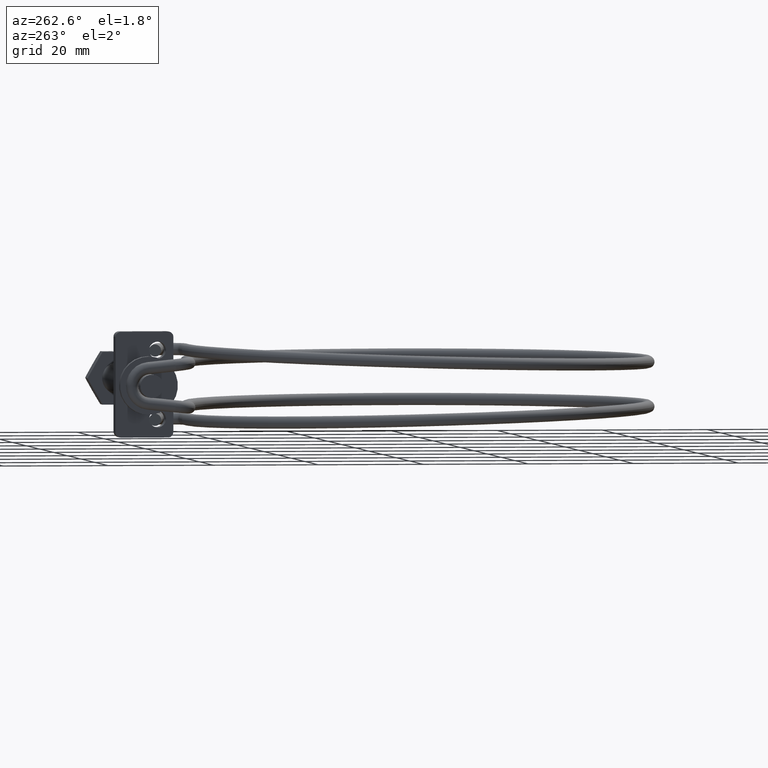
[diagram: clean part render]
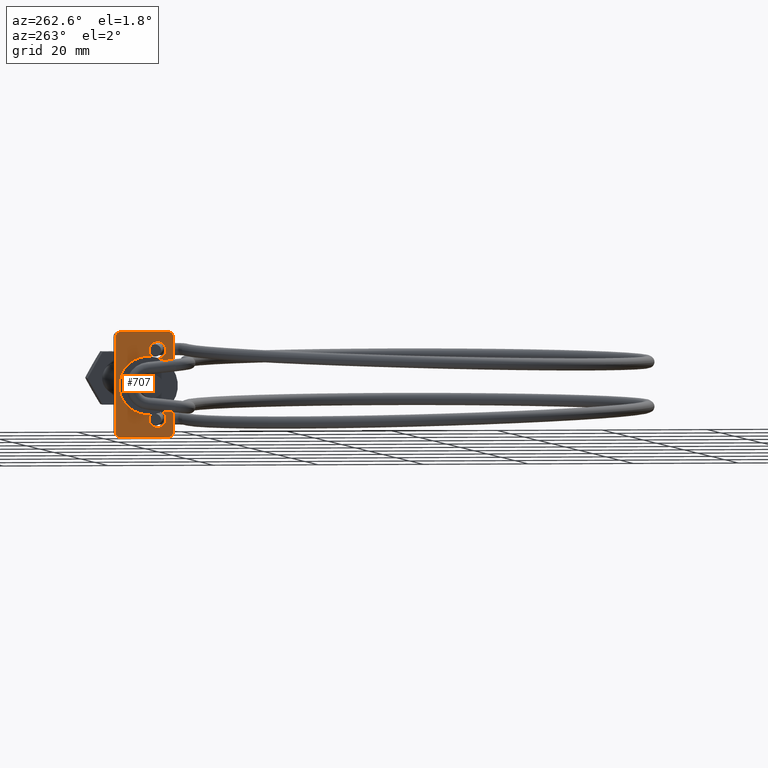
[diagram: same view with one face highlighted and labeled with its STEP entity id]
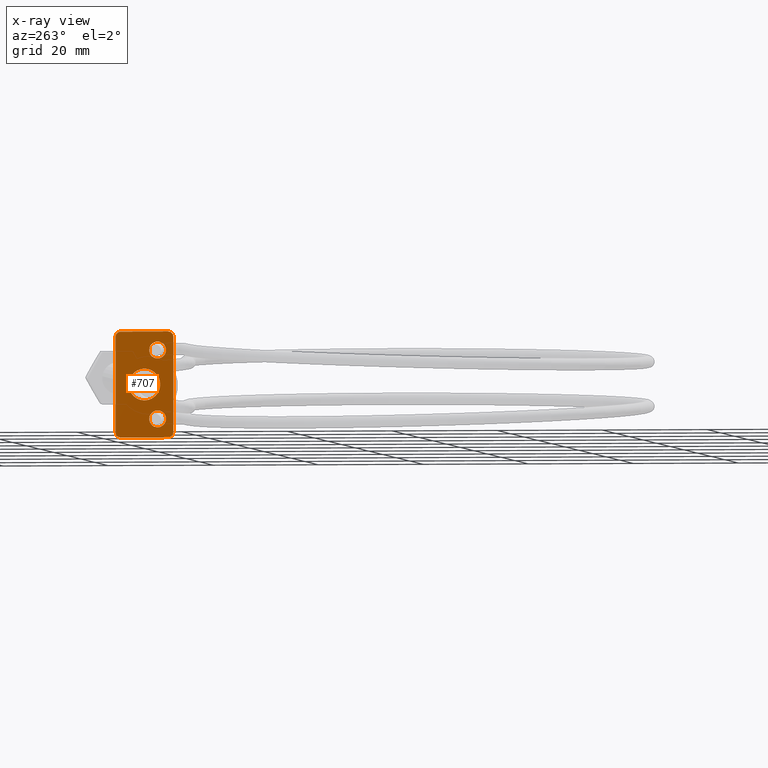
[diagram: x-ray of the same camera — body ghosted, the highlighted face saturated]
A machine part, auxiliary view. The second image highlights one B-rep face of the part: STEP entity #707.
The next image is the same camera in x-ray: the body ghosted, the highlighted face saturated — about 0% of this face is hidden behind the body in this view.
In plain terms, the highlighted planar face has unit normal (1, 0, 0).
Its self-contained STEP definition (entity closure, byte-faithful):
#21 = AXIS2_PLACEMENT_3D ( 'NONE', #1214, #2935, #1464 ) ;
#43 = DIRECTION ( 'NONE',  ( -1.000000000000000000, -0.0000000000000000000, -0.0000000000000000000 ) ) ;
#52 = VERTEX_POINT ( 'NONE', #1601 ) ;
#126 = AXIS2_PLACEMENT_3D ( 'NONE', #1746, #286, #1980 ) ;
#132 = EDGE_CURVE ( 'NONE', #2980, #2491, #357, .T. ) ;
#183 = FACE_BOUND ( 'NONE', #3063, .T. ) ;
#198 = VECTOR ( 'NONE', #1728, 1000.000000000000000 ) ;
#232 = ORIENTED_EDGE ( 'NONE', *, *, #1847, .T. ) ;
#248 = AXIS2_PLACEMENT_3D ( 'NONE', #696, #2413, #937 ) ;
#273 = CARTESIAN_POINT ( 'NONE',  ( -1.500000000000000000, 0.0000000000000000000, 0.0000000000000000000 ) ) ;
#278 = AXIS2_PLACEMENT_3D ( 'NONE', #314, #2007, #557 ) ;
#283 = EDGE_CURVE ( 'NONE', #2981, #2238, #1843, .T. ) ;
#286 = DIRECTION ( 'NONE',  ( -1.000000000000000000, -0.0000000000000000000, -0.0000000000000000000 ) ) ;
#307 = VERTEX_POINT ( 'NONE', #2160 ) ;
#314 = CARTESIAN_POINT ( 'NONE',  ( -1.500000000000000000, -2.499999999999999100, 6.500000000000000000 ) ) ;
#340 = DIRECTION ( 'NONE',  ( 1.000000000000000000, 0.0000000000000000000, 0.0000000000000000000 ) ) ;
#357 = LINE ( 'NONE', #3083, #2879 ) ;
#361 = VERTEX_POINT ( 'NONE', #2287 ) ;
#372 = ORIENTED_EDGE ( 'NONE', *, *, #1892, .T. ) ;
#473 = VERTEX_POINT ( 'NONE', #864 ) ;
#512 = DIRECTION ( 'NONE',  ( 0.0000000000000000000, 0.0000000000000000000, -1.000000000000000000 ) ) ;
#552 = CARTESIAN_POINT ( 'NONE',  ( -1.500000000000000000, -5.500000000000000000, 9.000000000000001800 ) ) ;
#557 = DIRECTION ( 'NONE',  ( 0.0000000000000000000, 0.0000000000000000000, -1.000000000000000000 ) ) ;
#562 = CARTESIAN_POINT ( 'NONE',  ( -1.500000000000000000, -5.500000000000000000, -9.000000000000003600 ) ) ;
#566 = EDGE_CURVE ( 'NONE', #1879, #52, #1795, .T. ) ;
#613 = AXIS2_PLACEMENT_3D ( 'NONE', #1500, #43, #1742 ) ;
#667 = AXIS2_PLACEMENT_3D ( 'NONE', #1799, #340, #2035 ) ;
#671 = DIRECTION ( 'NONE',  ( -1.000000000000000000, -0.0000000000000000000, -0.0000000000000000000 ) ) ;
#696 = CARTESIAN_POINT ( 'NONE',  ( -1.500000000000000000, -2.499999999999999100, -6.500000000000000000 ) ) ;
#707 = ADVANCED_FACE ( 'NONE', ( #183, #1466, #2690, #801 ), #1875, .F. ) ;
#712 = AXIS2_PLACEMENT_3D ( 'NONE', #735, #2459, #979 ) ;
#721 = ORIENTED_EDGE ( 'NONE', *, *, #2626, .F. ) ;
#735 = CARTESIAN_POINT ( 'NONE',  ( -1.500000000000000000, 4.500000000000000000, -9.000000000000003600 ) ) ;
#736 = CARTESIAN_POINT ( 'NONE',  ( -1.500000000000000000, 5.500000000000000000, 9.000000000000001800 ) ) ;
#760 = CARTESIAN_POINT ( 'NONE',  ( -1.500000000000000000, -2.499999999999999100, 6.500000000000000000 ) ) ;
#763 = CIRCLE ( 'NONE', #613, 1.000000000000000900 ) ;
#773 = CIRCLE ( 'NONE', #712, 0.9999999999999991100 ) ;
#801 = FACE_OUTER_BOUND ( 'NONE', #2272, .T. ) ;
#816 = CARTESIAN_POINT ( 'NONE',  ( -1.500000000000000000, 4.500000000000000000, -10.00000000000000000 ) ) ;
#825 = LINE ( 'NONE', #3154, #198 ) ;
#851 = CIRCLE ( 'NONE', #278, 1.599999999999999900 ) ;
#853 = DIRECTION ( 'NONE',  ( 0.0000000000000000000, -1.000000000000000000, 0.0000000000000000000 ) ) ;
#858 = VERTEX_POINT ( 'NONE', #1615 ) ;
#864 = CARTESIAN_POINT ( 'NONE',  ( -1.500000000000000000, -4.499999999999999100, 10.00000000000000000 ) ) ;
#937 = DIRECTION ( 'NONE',  ( 0.0000000000000000000, 0.0000000000000000000, -1.000000000000000000 ) ) ;
#979 = DIRECTION ( 'NONE',  ( 0.0000000000000000000, 0.0000000000000000000, -1.000000000000000000 ) ) ;
#981 = ORIENTED_EDGE ( 'NONE', *, *, #1135, .T. ) ;
#1003 = DIRECTION ( 'NONE',  ( 0.0000000000000000000, 0.0000000000000000000, -1.000000000000000000 ) ) ;
#1105 = CARTESIAN_POINT ( 'NONE',  ( -1.500000000000000000, -2.499999999999999100, -8.099999999999999600 ) ) ;
#1123 = CIRCLE ( 'NONE', #2926, 1.000000000000000900 ) ;
#1135 = EDGE_CURVE ( 'NONE', #2980, #1974, #1123, .T. ) ;
#1152 = ORIENTED_EDGE ( 'NONE', *, *, #1784, .T. ) ;
#1204 = CIRCLE ( 'NONE', #1817, 3.000000000000000400 ) ;
#1213 = LINE ( 'NONE', #1865, #2441 ) ;
#1214 = CARTESIAN_POINT ( 'NONE',  ( -1.500000000000000000, 0.0000000000000000000, 0.0000000000000000000 ) ) ;
#1244 = ORIENTED_EDGE ( 'NONE', *, *, #3165, .T. ) ;
#1282 = CIRCLE ( 'NONE', #126, 1.000000000000000900 ) ;
#1355 = ORIENTED_EDGE ( 'NONE', *, *, #283, .T. ) ;
#1374 = ORIENTED_EDGE ( 'NONE', *, *, #566, .T. ) ;
#1401 = DIRECTION ( 'NONE',  ( 1.000000000000000000, 0.0000000000000000000, 0.0000000000000000000 ) ) ;
#1464 = DIRECTION ( 'NONE',  ( 0.0000000000000000000, 0.0000000000000000000, -1.000000000000000000 ) ) ;
#1466 = FACE_BOUND ( 'NONE', #2570, .T. ) ;
#1500 = CARTESIAN_POINT ( 'NONE',  ( -1.500000000000000000, 4.500000000000000000, 9.000000000000001800 ) ) ;
#1510 = EDGE_CURVE ( 'NONE', #52, #1879, #1204, .T. ) ;
#1601 = CARTESIAN_POINT ( 'NONE',  ( -1.500000000000000000, 0.0000000000000000000, -3.000000000000000400 ) ) ;
#1605 = ORIENTED_EDGE ( 'NONE', *, *, #3100, .T. ) ;
#1612 = DIRECTION ( 'NONE',  ( -0.0000000000000000000, 1.000000000000000000, -0.0000000000000000000 ) ) ;
#1615 = CARTESIAN_POINT ( 'NONE',  ( -1.500000000000000000, 4.500000000000000000, 10.00000000000000000 ) ) ;
#1724 = VERTEX_POINT ( 'NONE', #736 ) ;
#1728 = DIRECTION ( 'NONE',  ( 0.0000000000000000000, 0.0000000000000000000, -1.000000000000000000 ) ) ;
#1742 = DIRECTION ( 'NONE',  ( 0.0000000000000000000, 0.0000000000000000000, -1.000000000000000000 ) ) ;
#1746 = CARTESIAN_POINT ( 'NONE',  ( -1.500000000000000000, -4.500000000000000000, 9.000000000000001800 ) ) ;
#1784 = EDGE_CURVE ( 'NONE', #307, #361, #2893, .T. ) ;
#1795 = CIRCLE ( 'NONE', #21, 3.000000000000000400 ) ;
#1799 = CARTESIAN_POINT ( 'NONE',  ( -1.500000000000000000, -2.499999999999999100, -6.500000000000000000 ) ) ;
#1817 = AXIS2_PLACEMENT_3D ( 'NONE', #273, #1966, #512 ) ;
#1843 = CIRCLE ( 'NONE', #248, 1.599999999999999900 ) ;
#1847 = EDGE_CURVE ( 'NONE', #361, #307, #851, .T. ) ;
#1865 = CARTESIAN_POINT ( 'NONE',  ( -1.500000000000000000, 5.500000000000000000, 10.00000000000000000 ) ) ;
#1875 = PLANE ( 'NONE',  #2472 ) ;
#1879 = VERTEX_POINT ( 'NONE', #2710 ) ;
#1892 = EDGE_CURVE ( 'NONE', #858, #1724, #763, .T. ) ;
#1937 = CARTESIAN_POINT ( 'NONE',  ( -1.500000000000000000, -2.499999999999999100, -4.899999999999998600 ) ) ;
#1966 = DIRECTION ( 'NONE',  ( 1.000000000000000000, 0.0000000000000000000, 0.0000000000000000000 ) ) ;
#1974 = VERTEX_POINT ( 'NONE', #562 ) ;
#1980 = DIRECTION ( 'NONE',  ( 0.0000000000000000000, 0.0000000000000000000, -1.000000000000000000 ) ) ;
#2003 = ORIENTED_EDGE ( 'NONE', *, *, #2341, .F. ) ;
#2007 = DIRECTION ( 'NONE',  ( 1.000000000000000000, 0.0000000000000000000, 0.0000000000000000000 ) ) ;
#2035 = DIRECTION ( 'NONE',  ( 0.0000000000000000000, 0.0000000000000000000, -1.000000000000000000 ) ) ;
#2126 = CARTESIAN_POINT ( 'NONE',  ( -1.500000000000000000, -4.499999999999999100, -9.000000000000001800 ) ) ;
#2141 = ORIENTED_EDGE ( 'NONE', *, *, #2191, .F. ) ;
#2160 = CARTESIAN_POINT ( 'NONE',  ( -1.500000000000000000, -2.499999999999999100, 4.899999999999999500 ) ) ;
#2168 = CARTESIAN_POINT ( 'NONE',  ( -1.500000000000000000, -4.499999999999999100, -10.00000000000000000 ) ) ;
#2183 = ORIENTED_EDGE ( 'NONE', *, *, #1510, .T. ) ;
#2191 = EDGE_CURVE ( 'NONE', #858, #473, #2621, .T. ) ;
#2238 = VERTEX_POINT ( 'NONE', #1105 ) ;
#2272 = EDGE_LOOP ( 'NONE', ( #2757, #981, #2003, #1605, #2141, #372, #721, #2412 ) ) ;
#2287 = CARTESIAN_POINT ( 'NONE',  ( -1.500000000000000000, -2.499999999999999100, 8.099999999999999600 ) ) ;
#2314 = AXIS2_PLACEMENT_3D ( 'NONE', #760, #2481, #1003 ) ;
#2326 = CARTESIAN_POINT ( 'NONE',  ( -1.500000000000000000, 5.500000000000000000, 10.00000000000000000 ) ) ;
#2341 = EDGE_CURVE ( 'NONE', #3141, #1974, #825, .T. ) ;
#2363 = DIRECTION ( 'NONE',  ( -0.0000000000000000000, -0.0000000000000000000, 1.000000000000000000 ) ) ;
#2381 = DIRECTION ( 'NONE',  ( 0.0000000000000000000, 0.0000000000000000000, -1.000000000000000000 ) ) ;
#2412 = ORIENTED_EDGE ( 'NONE', *, *, #3030, .T. ) ;
#2413 = DIRECTION ( 'NONE',  ( 1.000000000000000000, 0.0000000000000000000, 0.0000000000000000000 ) ) ;
#2441 = VECTOR ( 'NONE', #2363, 1000.000000000000000 ) ;
#2459 = DIRECTION ( 'NONE',  ( -1.000000000000000000, -0.0000000000000000000, -0.0000000000000000000 ) ) ;
#2472 = AXIS2_PLACEMENT_3D ( 'NONE', #2869, #1401, #3110 ) ;
#2481 = DIRECTION ( 'NONE',  ( 1.000000000000000000, 0.0000000000000000000, 0.0000000000000000000 ) ) ;
#2491 = VERTEX_POINT ( 'NONE', #816 ) ;
#2570 = EDGE_LOOP ( 'NONE', ( #1244, #1355 ) ) ;
#2621 = LINE ( 'NONE', #2326, #3114 ) ;
#2626 = EDGE_CURVE ( 'NONE', #3150, #1724, #1213, .T. ) ;
#2631 = CIRCLE ( 'NONE', #667, 1.599999999999999900 ) ;
#2690 = FACE_BOUND ( 'NONE', #3149, .T. ) ;
#2710 = CARTESIAN_POINT ( 'NONE',  ( -1.500000000000000000, 3.673940397442060400E-016, 3.000000000000000400 ) ) ;
#2757 = ORIENTED_EDGE ( 'NONE', *, *, #132, .F. ) ;
#2763 = CARTESIAN_POINT ( 'NONE',  ( -1.500000000000000000, 5.500000000000000000, -9.000000000000003600 ) ) ;
#2869 = CARTESIAN_POINT ( 'NONE',  ( -1.500000000000000000, 0.0000000000000000000, 0.0000000000000000000 ) ) ;
#2879 = VECTOR ( 'NONE', #1612, 1000.000000000000000 ) ;
#2893 = CIRCLE ( 'NONE', #2314, 1.599999999999999900 ) ;
#2926 = AXIS2_PLACEMENT_3D ( 'NONE', #2126, #671, #2381 ) ;
#2935 = DIRECTION ( 'NONE',  ( 1.000000000000000000, 0.0000000000000000000, 0.0000000000000000000 ) ) ;
#2980 = VERTEX_POINT ( 'NONE', #2168 ) ;
#2981 = VERTEX_POINT ( 'NONE', #1937 ) ;
#3030 = EDGE_CURVE ( 'NONE', #3150, #2491, #773, .T. ) ;
#3063 = EDGE_LOOP ( 'NONE', ( #2183, #1374 ) ) ;
#3083 = CARTESIAN_POINT ( 'NONE',  ( -1.500000000000000000, 5.500000000000000000, -10.00000000000000000 ) ) ;
#3100 = EDGE_CURVE ( 'NONE', #3141, #473, #1282, .T. ) ;
#3110 = DIRECTION ( 'NONE',  ( 0.0000000000000000000, 0.0000000000000000000, -1.000000000000000000 ) ) ;
#3114 = VECTOR ( 'NONE', #853, 1000.000000000000000 ) ;
#3141 = VERTEX_POINT ( 'NONE', #552 ) ;
#3149 = EDGE_LOOP ( 'NONE', ( #1152, #232 ) ) ;
#3150 = VERTEX_POINT ( 'NONE', #2763 ) ;
#3154 = CARTESIAN_POINT ( 'NONE',  ( -1.500000000000000000, -5.500000000000000000, 10.00000000000000000 ) ) ;
#3165 = EDGE_CURVE ( 'NONE', #2238, #2981, #2631, .T. ) ;